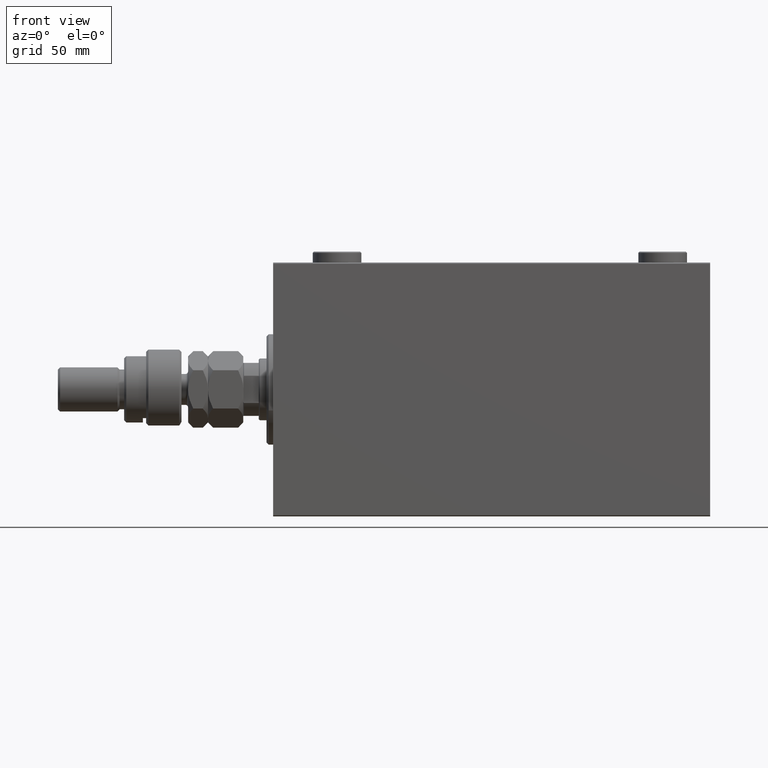
[diagram: clean part render]
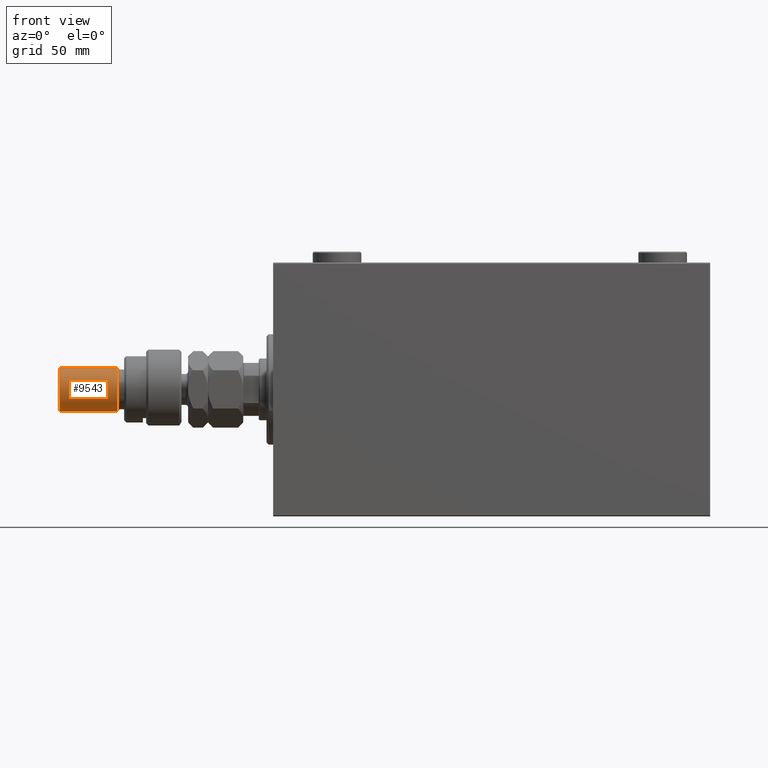
[diagram: same view with one face highlighted and labeled with its STEP entity id]
A machine part, front view. The second image highlights one B-rep face of the part: STEP entity #9543.
In plain terms, the highlighted cylindrical surface (edge-blend (fillet) strip) has radius 10 mm, axis along (1, -0, -0).
Its self-contained STEP definition (entity closure, byte-faithful):
#656 = AXIS2_PLACEMENT_3D ( 'NONE', #43849, #24632, #43615 ) ;
#861 = CARTESIAN_POINT ( 'NONE',  ( 10.00000000000000000, 1.224646799147353256E-15, 29.00000000000000711 ) ) ;
#1022 = CARTESIAN_POINT ( 'NONE',  ( 10.00000000000000000, 1.224646799147353256E-15, 56.00000000000000711 ) ) ;
#1036 = ORIENTED_EDGE ( 'NONE', *, *, #22127, .F. ) ;
#1488 = ORIENTED_EDGE ( 'NONE', *, *, #3576, .T. ) ;
#2628 = AXIS2_PLACEMENT_3D ( 'NONE', #21717, #40453, #7094 ) ;
#3576 = EDGE_CURVE ( 'NONE', #42656, #46790, #5371, .T. ) ;
#3836 = AXIS2_PLACEMENT_3D ( 'NONE', #14796, #7249, #14557 ) ;
#4422 = LINE ( 'NONE', #1022, #13378 ) ;
#4703 = ORIENTED_EDGE ( 'NONE', *, *, #45746, .T. ) ;
#5371 = CIRCLE ( 'NONE', #656, 10.00000000000000000 ) ;
#7094 = DIRECTION ( 'NONE',  ( 1.000000000000000000, 0.000000000000000000, 0.000000000000000000 ) ) ;
#7249 = DIRECTION ( 'NONE',  ( -0.000000000000000000, -0.000000000000000000, -1.000000000000000000 ) ) ;
#8334 = EDGE_LOOP ( 'NONE', ( #1036, #1488, #4703, #18111 ) ) ;
#9543 = ADVANCED_FACE ( 'NONE', ( #15046 ), #10903, .T. ) ;
#10903 = CYLINDRICAL_SURFACE ( 'NONE', #3836, 10.00000000000000000 ) ;
#11144 = CARTESIAN_POINT ( 'NONE',  ( 10.00000000000000000, 1.224646799147353256E-15, 54.99999999999998579 ) ) ;
#11908 = CARTESIAN_POINT ( 'NONE',  ( -10.00000000000000000, 0.000000000000000000, 54.99999999999998579 ) ) ;
#13378 = VECTOR ( 'NONE', #19064, 1000.000000000000000 ) ;
#14557 = DIRECTION ( 'NONE',  ( -1.000000000000000000, 0.000000000000000000, 0.000000000000000000 ) ) ;
#14796 = CARTESIAN_POINT ( 'NONE',  ( 0.000000000000000000, 0.000000000000000000, 56.00000000000000711 ) ) ;
#14936 = VERTEX_POINT ( 'NONE', #861 ) ;
#15046 = FACE_OUTER_BOUND ( 'NONE', #8334, .T. ) ;
#18111 = ORIENTED_EDGE ( 'NONE', *, *, #28069, .T. ) ;
#19064 = DIRECTION ( 'NONE',  ( -0.000000000000000000, -0.000000000000000000, -1.000000000000000000 ) ) ;
#20968 = CARTESIAN_POINT ( 'NONE',  ( -10.00000000000000000, 0.000000000000000000, 56.00000000000000711 ) ) ;
#21717 = CARTESIAN_POINT ( 'NONE',  ( 0.000000000000000000, 0.000000000000000000, 29.00000000000000711 ) ) ;
#22127 = EDGE_CURVE ( 'NONE', #42656, #14936, #4422, .T. ) ;
#22871 = CIRCLE ( 'NONE', #2628, 10.00000000000000000 ) ;
#24632 = DIRECTION ( 'NONE',  ( 0.000000000000000000, 0.000000000000000000, -1.000000000000000000 ) ) ;
#25079 = VERTEX_POINT ( 'NONE', #45630 ) ;
#28069 = EDGE_CURVE ( 'NONE', #25079, #14936, #22871, .T. ) ;
#38998 = LINE ( 'NONE', #20968, #41192 ) ;
#40453 = DIRECTION ( 'NONE',  ( -0.000000000000000000, -0.000000000000000000, 1.000000000000000000 ) ) ;
#41192 = VECTOR ( 'NONE', #42646, 1000.000000000000000 ) ;
#42646 = DIRECTION ( 'NONE',  ( -0.000000000000000000, -0.000000000000000000, -1.000000000000000000 ) ) ;
#42656 = VERTEX_POINT ( 'NONE', #11144 ) ;
#43615 = DIRECTION ( 'NONE',  ( 1.000000000000000000, 0.000000000000000000, 0.000000000000000000 ) ) ;
#43849 = CARTESIAN_POINT ( 'NONE',  ( 0.000000000000000000, 0.000000000000000000, 54.99999999999998579 ) ) ;
#45630 = CARTESIAN_POINT ( 'NONE',  ( -10.00000000000000000, 0.000000000000000000, 29.00000000000000711 ) ) ;
#45746 = EDGE_CURVE ( 'NONE', #46790, #25079, #38998, .T. ) ;
#46790 = VERTEX_POINT ( 'NONE', #11908 ) ;